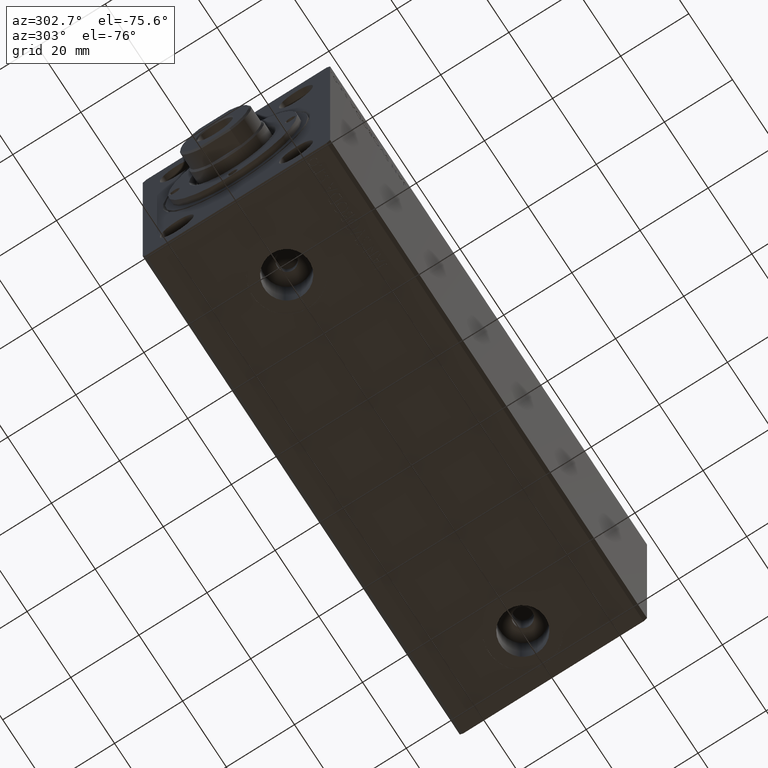
[diagram: clean part render]
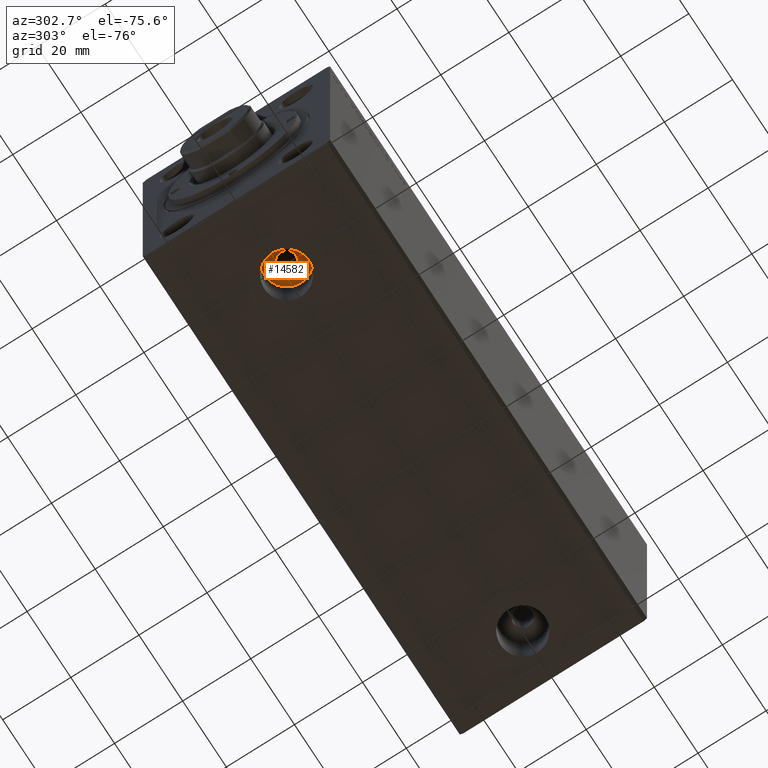
[diagram: same view with one face highlighted and labeled with its STEP entity id]
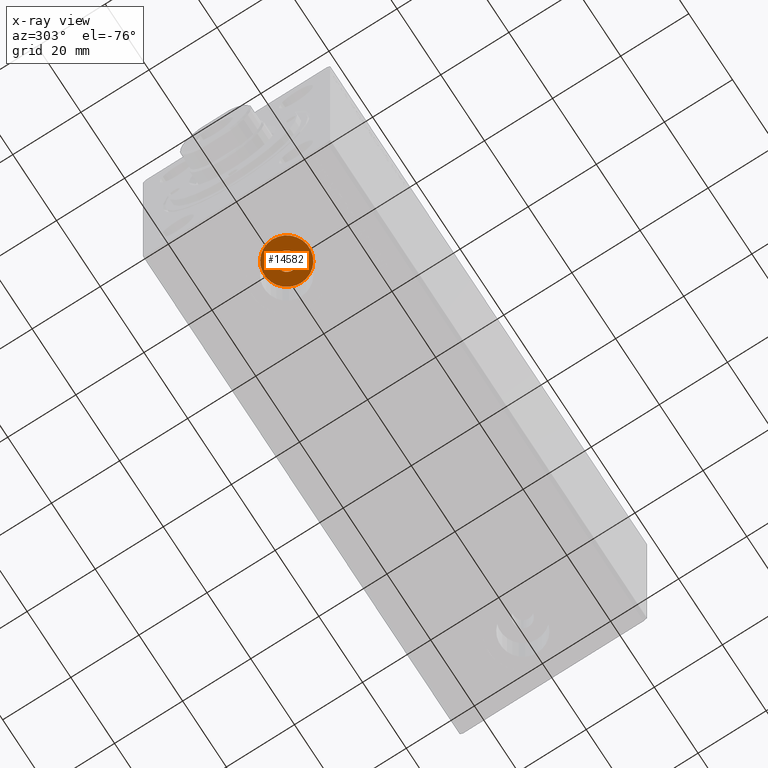
[diagram: x-ray of the same camera — body ghosted, the highlighted face saturated]
A machine part, auxiliary view. The second image highlights one B-rep face of the part: STEP entity #14582.
The next image is the same camera in x-ray: the body ghosted, the highlighted face saturated — about 0% of this face is hidden behind the body in this view.
In plain terms, the highlighted planar face has unit normal (0, 0, -1).
Its self-contained STEP definition (entity closure, byte-faithful):
#786 = FACE_OUTER_BOUND ( 'NONE', #24541, .T. ) ;
#1436 = CARTESIAN_POINT ( 'NONE',  ( 23.00000000000000000, -3.533115609439951465E-15, -23.79999999999998650 ) ) ;
#3664 = VERTEX_POINT ( 'NONE', #16675 ) ;
#4056 = VERTEX_POINT ( 'NONE', #18338 ) ;
#5894 = EDGE_CURVE ( 'NONE', #5995, #3664, #26850, .T. ) ;
#5995 = VERTEX_POINT ( 'NONE', #12494 ) ;
#7025 = DIRECTION ( 'NONE',  ( -1.000000000000000000, 0.000000000000000000, 0.000000000000000000 ) ) ;
#7050 = VERTEX_POINT ( 'NONE', #38497 ) ;
#7608 = AXIS2_PLACEMENT_3D ( 'NONE', #18550, #25448, #39040 ) ;
#8018 = ORIENTED_EDGE ( 'NONE', *, *, #18557, .F. ) ;
#9291 = AXIS2_PLACEMENT_3D ( 'NONE', #24866, #35331, #31775 ) ;
#11649 = ORIENTED_EDGE ( 'NONE', *, *, #26805, .T. ) ;
#12494 = CARTESIAN_POINT ( 'NONE',  ( 29.58000000000000185, -2.727298015600992818E-15, -23.79999999999998650 ) ) ;
#14582 = ADVANCED_FACE ( 'NONE', ( #18171, #786 ), #31562, .T. ) ;
#15258 = DIRECTION ( 'NONE',  ( 0.000000000000000000, 0.000000000000000000, -1.000000000000000000 ) ) ;
#15523 = ORIENTED_EDGE ( 'NONE', *, *, #24312, .F. ) ;
#15995 = ORIENTED_EDGE ( 'NONE', *, *, #5894, .T. ) ;
#16675 = CARTESIAN_POINT ( 'NONE',  ( 16.41999999999999815, -3.533115609439951465E-15, -23.79999999999998650 ) ) ;
#18171 = FACE_BOUND ( 'NONE', #35660, .T. ) ;
#18338 = CARTESIAN_POINT ( 'NONE',  ( 25.75000000000000000, -3.196337739674429808E-15, -23.79999999999998650 ) ) ;
#18550 = CARTESIAN_POINT ( 'NONE',  ( 23.00000000000000000, -3.533115609439951465E-15, -23.79999999999998650 ) ) ;
#18557 = EDGE_CURVE ( 'NONE', #7050, #4056, #22805, .T. ) ;
#18755 = CIRCLE ( 'NONE', #21640, 2.749999999999999112 ) ;
#19964 = AXIS2_PLACEMENT_3D ( 'NONE', #1436, #15258, #31767 ) ;
#21640 = AXIS2_PLACEMENT_3D ( 'NONE', #34447, #37787, #7025 ) ;
#22805 = CIRCLE ( 'NONE', #19964, 2.749999999999999112 ) ;
#24312 = EDGE_CURVE ( 'NONE', #4056, #7050, #18755, .T. ) ;
#24541 = EDGE_LOOP ( 'NONE', ( #11649, #15995 ) ) ;
#24866 = CARTESIAN_POINT ( 'NONE',  ( 23.00000000000000000, -3.533115609439951465E-15, -23.79999999999998650 ) ) ;
#25448 = DIRECTION ( 'NONE',  ( 0.000000000000000000, 0.000000000000000000, -1.000000000000000000 ) ) ;
#25648 = CARTESIAN_POINT ( 'NONE',  ( 23.00000000000000000, -3.533115609439951465E-15, -23.79999999999998650 ) ) ;
#26805 = EDGE_CURVE ( 'NONE', #3664, #5995, #35956, .T. ) ;
#26850 = CIRCLE ( 'NONE', #7608, 6.580000000000002736 ) ;
#30964 = AXIS2_PLACEMENT_3D ( 'NONE', #25648, #35242, #42152 ) ;
#31562 = PLANE ( 'NONE',  #9291 ) ;
#31767 = DIRECTION ( 'NONE',  ( -1.000000000000000000, 0.000000000000000000, 0.000000000000000000 ) ) ;
#31775 = DIRECTION ( 'NONE',  ( -1.000000000000000000, 0.000000000000000000, -0.000000000000000000 ) ) ;
#34447 = CARTESIAN_POINT ( 'NONE',  ( 23.00000000000000000, -3.533115609439951465E-15, -23.79999999999998650 ) ) ;
#35242 = DIRECTION ( 'NONE',  ( 0.000000000000000000, 0.000000000000000000, -1.000000000000000000 ) ) ;
#35331 = DIRECTION ( 'NONE',  ( 0.000000000000000000, 0.000000000000000000, -1.000000000000000000 ) ) ;
#35660 = EDGE_LOOP ( 'NONE', ( #8018, #15523 ) ) ;
#35956 = CIRCLE ( 'NONE', #30964, 6.580000000000002736 ) ;
#37787 = DIRECTION ( 'NONE',  ( 0.000000000000000000, 0.000000000000000000, -1.000000000000000000 ) ) ;
#38497 = CARTESIAN_POINT ( 'NONE',  ( 20.25000000000000000, -3.533115609439951465E-15, -23.79999999999998650 ) ) ;
#39040 = DIRECTION ( 'NONE',  ( -1.000000000000000000, 0.000000000000000000, 0.000000000000000000 ) ) ;
#42152 = DIRECTION ( 'NONE',  ( -1.000000000000000000, 0.000000000000000000, 0.000000000000000000 ) ) ;